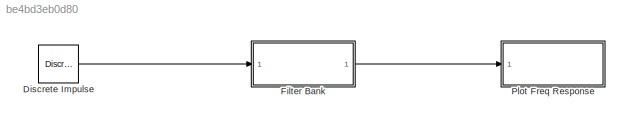
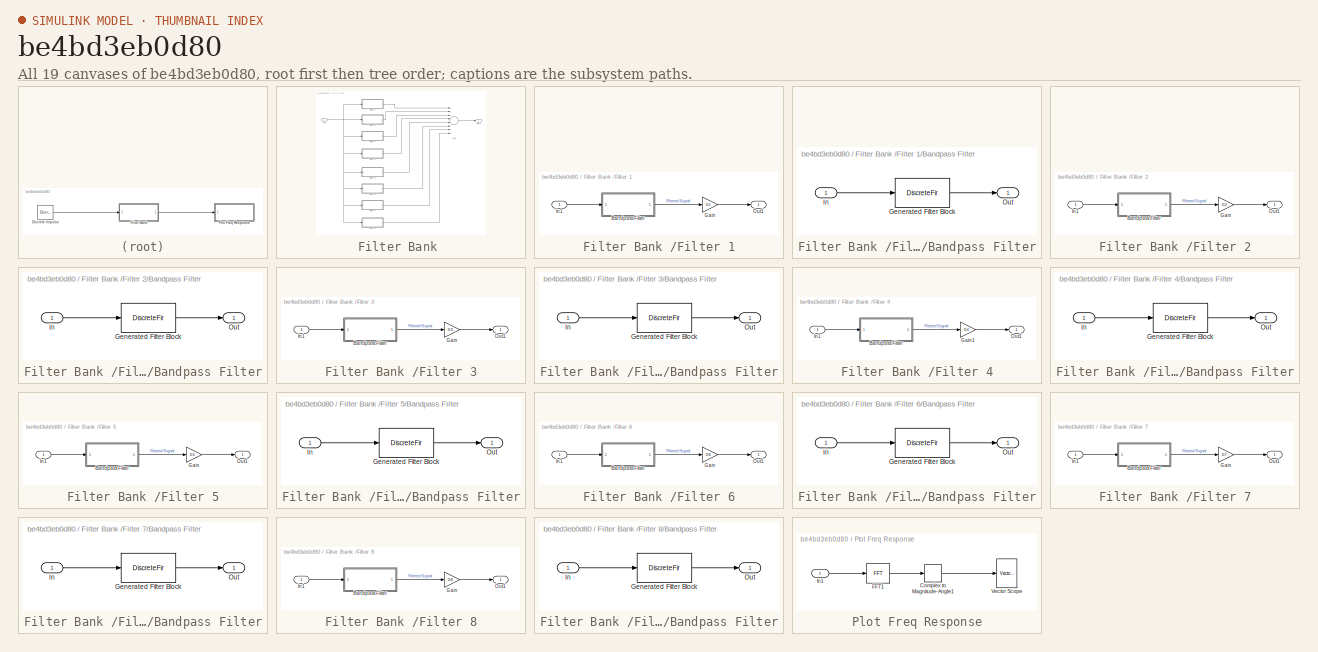
[diagram: thumbnail index - all 19 canvases of the model, root first then tree order]
MODEL slx_be4bd3eb0d80
KIND model
CONFIG AbsTol = auto
CONFIG EnableMultiTasking = off
CONFIG FixedStep = auto
CONFIG MaxStep = auto
CONFIG MinStep = auto
CONFIG RelTol = 1e-3
CONFIG SampleTimeConstraint = Unconstrained
CONFIG Solver = VariableStepAuto
CONFIG SolverName = VariableStepAuto
CONFIG StartTime = 0.0
CONFIG StopTime = 0.001
BLOCK [Reference] Discrete Impulse  REF=dspsrcs4/Discrete 
Impulse
  Ports = [0, 1]
  SourceBlock = dspsrcs4/Discrete \nImpulse
  SourceProductBaseCode = DS
  SourceProductName = DSP System Toolbox
  SourceType = Discrete Impulse
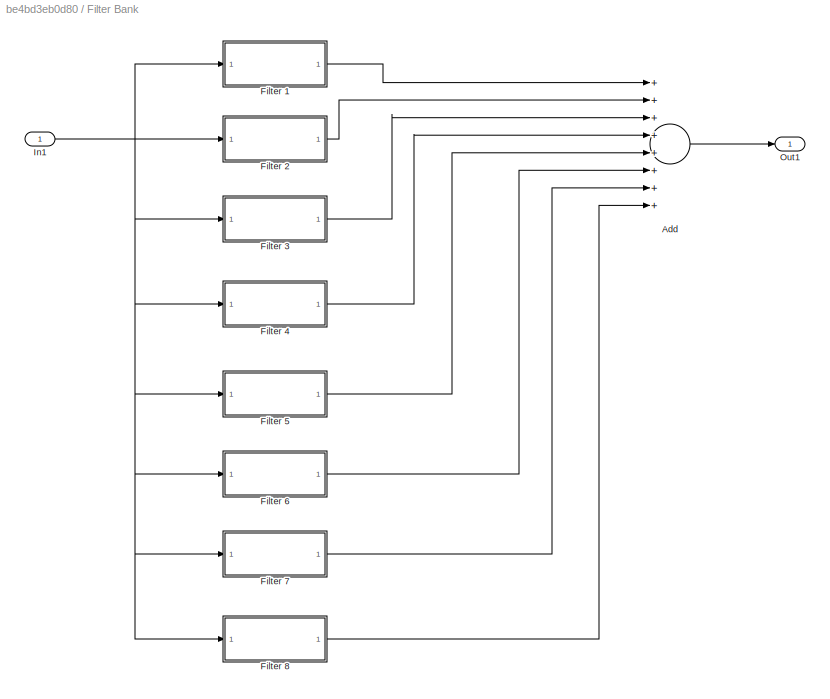
BLOCK [SubSystem] Filter Bank 
  Ports = [1, 1]
  RequestExecContextInheritance = off
BLOCK [Sum] Filter Bank /Add
  InputSameDT = off
  Inputs = ++++++++
  OutDataTypeStr = Inherit: Inherit via internal rule
  Ports = [8, 1]
  SaturateOnIntegerOverflow = off
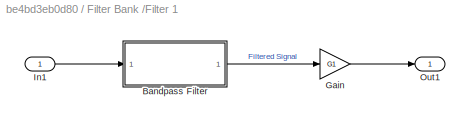
BLOCK [SubSystem] Filter Bank /Filter 1
  Ports = [1, 1]
  RequestExecContextInheritance = off
BLOCK [SubSystem] Filter Bank /Filter 1/Bandpass Filter
  CopyFcn = fdesignblkfcn(gcbh, {'CopyFcn'});
  DialogController = fdesignblkfcn
  InitFcn = fdesignblkfcn(gcbh, {'InitFcn'});
  Ports = [1, 1]
  RequestExecContextInheritance = off
  UserDataPersistent = on
BLOCK [DiscreteFir] Filter Bank /Filter 1/Bandpass Filter/Generated Filter Block
  Coefficients = [-0.257543020622626739 0.0289815190812138038 0.0271462514242718674 0.0252930204966906706 0.0233842990686340332 0.0214834889673352902 0.0195519119528949729 0.0176552863602651711 0.0157517592726700885 0.013906906244850737 0.0120765447228151409 0.0103277017026769564 0.00861245925854588548 0.00699653501298343715 0.00542957610918218606 0.00397974000407086588 0.00258688448502846944 0.0013270996224227752...<+14733ch>
  InputPortMap = u0
  InputProcessing = Columns as channels (frame based)
  OutputPortMap = o0
  Ports = [1, 1]
  Tag = BlockMethodSubSystem
BLOCK [Inport] Filter Bank /Filter 1/Bandpass Filter/In
  IconDisplay = Port number
BLOCK [Outport] Filter Bank /Filter 1/Bandpass Filter/Out
  IconDisplay = Port number
BLOCK [Gain] Filter Bank /Filter 1/Gain
  Gain = G1
  OutDataTypeStr = Inherit: Inherit via internal rule
  ParamDataTypeStr = Inherit: Inherit via internal rule
  SaturateOnIntegerOverflow = off
BLOCK [Inport] Filter Bank /Filter 1/In1
  IconDisplay = Port number
BLOCK [Outport] Filter Bank /Filter 1/Out1
  IconDisplay = Port number
BLOCK [SubSystem] Filter Bank /Filter 2
  Ports = [1, 1]
  RequestExecContextInheritance = off
BLOCK [SubSystem] Filter Bank /Filter 2/Bandpass Filter
  CopyFcn = fdesignblkfcn(gcbh, {'CopyFcn'});
  DialogController = fdesignblkfcn
  InitFcn = fdesignblkfcn(gcbh, {'InitFcn'});
  Ports = [1, 1]
  RequestExecContextInheritance = off
  UserDataPersistent = on
BLOCK [DiscreteFir] Filter Bank /Filter 2/Bandpass Filter/Generated Filter Block
  Coefficients = [-0.0660330639432535199 0.0141699831997331299 0.0123701077816715521 0.0105781049462930349 0.00878581863246792605 0.00705493856557752597 0.00537142862782863384 0.00379656427701478838 0.00230810125286075307 0.000965125479643225148 -0.000261112456825821071 -0.00130535622906845228 -0.00221286951343672988 -0.00290619347245857362 -0.00345175502430468406 -0.00375049954902033356 -0.0039245756086629946 -0....<+4217ch>
  InputPortMap = u0
  InputProcessing = Columns as channels (frame based)
  OutputPortMap = o0
  Ports = [1, 1]
  Tag = BlockMethodSubSystem
BLOCK [Inport] Filter Bank /Filter 2/Bandpass Filter/In
  IconDisplay = Port number
BLOCK [Outport] Filter Bank /Filter 2/Bandpass Filter/Out
  IconDisplay = Port number
BLOCK [Gain] Filter Bank /Filter 2/Gain
  Gain = G2
  OutDataTypeStr = Inherit: Inherit via internal rule
  ParamDataTypeStr = Inherit: Inherit via internal rule
  SaturateOnIntegerOverflow = off
BLOCK [Inport] Filter Bank /Filter 2/In1
  IconDisplay = Port number
BLOCK [Outport] Filter Bank /Filter 2/Out1
  IconDisplay = Port number
BLOCK [SubSystem] Filter Bank /Filter 3
  Ports = [1, 1]
  RequestExecContextInheritance = off
BLOCK [SubSystem] Filter Bank /Filter 3/Bandpass Filter
  CopyFcn = fdesignblkfcn(gcbh, {'CopyFcn'});
  DialogController = fdesignblkfcn
  InitFcn = fdesignblkfcn(gcbh, {'InitFcn'});
  Ports = [1, 1]
  RequestExecContextInheritance = off
  UserDataPersistent = on
BLOCK [DiscreteFir] Filter Bank /Filter 3/Bandpass Filter/Generated Filter Block
  Coefficients = [-0.022676209556659558 0.00831537627105391475 0.00625444933365220876 0.00424714302397517784 0.00237743510760208068 0.000738511637775933483 -0.00062078981031381264 -0.00163736745853693827 -0.0022926525967557794 -0.00255245315513001961 -0.00243287397496265781 -0.00193460665419815242 -0.00111680530545090265 -1.9491616540960599e-05 0.0012507856235949473 0.00262136659937836289 0.00394712406793925469 0....<+4919ch>
  InputPortMap = u0
  InputProcessing = Columns as channels (frame based)
  OutputPortMap = o0
  Ports = [1, 1]
  Tag = BlockMethodSubSystem
BLOCK [Inport] Filter Bank /Filter 3/Bandpass Filter/In
  IconDisplay = Port number
BLOCK [Outport] Filter Bank /Filter 3/Bandpass Filter/Out
  IconDisplay = Port number
BLOCK [Gain] Filter Bank /Filter 3/Gain
  Gain = G3
  OutDataTypeStr = Inherit: Inherit via internal rule
  ParamDataTypeStr = Inherit: Inherit via internal rule
  SaturateOnIntegerOverflow = off
BLOCK [Inport] Filter Bank /Filter 3/In1
  IconDisplay = Port number
BLOCK [Outport] Filter Bank /Filter 3/Out1
  IconDisplay = Port number
BLOCK [SubSystem] Filter Bank /Filter 4
  Ports = [1, 1]
  RequestExecContextInheritance = off
BLOCK [SubSystem] Filter Bank /Filter 4/Bandpass Filter
  CopyFcn = fdesignblkfcn(gcbh, {'CopyFcn'});
  DialogController = fdesignblkfcn
  InitFcn = fdesignblkfcn(gcbh, {'InitFcn'});
  Ports = [1, 1]
  RequestExecContextInheritance = off
  UserDataPersistent = on
BLOCK [DiscreteFir] Filter Bank /Filter 4/Bandpass Filter/Generated Filter Block
  Coefficients = [0.0188867810917569372 -0.007614315740862008 -0.00719307720691812324 -0.00714705712133415026 -0.00710081565682888459 -0.00676586236551331589 -0.00595435542344413277 -0.00462737657370371116 -0.00287412263670826836 -0.00090626332740616699 0.00100720475167280824 0.00257855700165236443 0.00358085391980136935 0.00387884711161009437 0.00347511605932363399 0.00248966428660695425 0.0011531879878257129 -0....<+4607ch>
  InputPortMap = u0
  InputProcessing = Columns as channels (frame based)
  OutputPortMap = o0
  Ports = [1, 1]
  Tag = BlockMethodSubSystem
BLOCK [Inport] Filter Bank /Filter 4/Bandpass Filter/In
  IconDisplay = Port number
BLOCK [Outport] Filter Bank /Filter 4/Bandpass Filter/Out
  IconDisplay = Port number
BLOCK [Gain] Filter Bank /Filter 4/Gain1
  Gain = G4
  OutDataTypeStr = Inherit: Inherit via internal rule
  ParamDataTypeStr = Inherit: Inherit via internal rule
  SaturateOnIntegerOverflow = off
BLOCK [Inport] Filter Bank /Filter 4/In1
  IconDisplay = Port number
BLOCK [Outport] Filter Bank /Filter 4/Out1
  IconDisplay = Port number
BLOCK [SubSystem] Filter Bank /Filter 5
  Ports = [1, 1]
  RequestExecContextInheritance = off
BLOCK [SubSystem] Filter Bank /Filter 5/Bandpass Filter
  CopyFcn = fdesignblkfcn(gcbh, {'CopyFcn'});
  DialogController = fdesignblkfcn
  InitFcn = fdesignblkfcn(gcbh, {'InitFcn'});
  Ports = [1, 1]
  RequestExecContextInheritance = off
  UserDataPersistent = on
BLOCK [DiscreteFir] Filter Bank /Filter 5/Bandpass Filter/Generated Filter Block
  Coefficients = [0.0241249509042130404 -0.00381759548935193009 -0.00335043117269948759 -0.00280283317956183655 -0.00222658241030008509 -0.00171780387248413914 -0.00143140992726093624 -0.00149976793369279923 -0.00198226765440287327 -0.0027724070626023679 -0.00361005011570353276 -0.00411568933374265988 -0.0039477817296882569 -0.00292641547264400805 -0.00117562333445679103 0.000889708694651456487 0.00262661884998401...<+4699ch>
  InputPortMap = u0
  InputProcessing = Columns as channels (frame based)
  OutputPortMap = o0
  Ports = [1, 1]
  Tag = BlockMethodSubSystem
BLOCK [Inport] Filter Bank /Filter 5/Bandpass Filter/In
  IconDisplay = Port number
BLOCK [Outport] Filter Bank /Filter 5/Bandpass Filter/Out
  IconDisplay = Port number
BLOCK [Gain] Filter Bank /Filter 5/Gain
  Gain = G5
  OutDataTypeStr = Inherit: Inherit via internal rule
  ParamDataTypeStr = Inherit: Inherit via internal rule
  SaturateOnIntegerOverflow = off
BLOCK [Inport] Filter Bank /Filter 5/In1
  IconDisplay = Port number
BLOCK [Outport] Filter Bank /Filter 5/Out1
  IconDisplay = Port number
BLOCK [SubSystem] Filter Bank /Filter 6
  Ports = [1, 1]
  RequestExecContextInheritance = off
BLOCK [SubSystem] Filter Bank /Filter 6/Bandpass Filter
  CopyFcn = fdesignblkfcn(gcbh, {'CopyFcn'});
  DialogController = fdesignblkfcn
  InitFcn = fdesignblkfcn(gcbh, {'InitFcn'});
  Ports = [1, 1]
  RequestExecContextInheritance = off
  UserDataPersistent = on
BLOCK [DiscreteFir] Filter Bank /Filter 6/Bandpass Filter/Generated Filter Block
  Coefficients = [-0.0190297709531986221 0.016992342518454228 0.00819042507426264235 0.00319545189032296312 0.00197915216031543939 0.0034863260088258026 0.00584958729985914083 0.00709252448362956978 0.00592296809379949662 0.00239683318209149218 -0.00207166410266780912 -0.00532207260656518757 -0.00563574573381623103 -0.00270421433350533091 0.00200275684589019953 0.00597658029457942552 0.00696961685628643551 0.00434...<+4525ch>
  InputPortMap = u0
  InputProcessing = Columns as channels (frame based)
  OutputPortMap = o0
  Ports = [1, 1]
  Tag = BlockMethodSubSystem
BLOCK [Inport] Filter Bank /Filter 6/Bandpass Filter/In
  IconDisplay = Port number
BLOCK [Outport] Filter Bank /Filter 6/Bandpass Filter/Out
  IconDisplay = Port number
BLOCK [Gain] Filter Bank /Filter 6/Gain
  Gain = G6
  OutDataTypeStr = Inherit: Inherit via internal rule
  ParamDataTypeStr = Inherit: Inherit via internal rule
  SaturateOnIntegerOverflow = off
BLOCK [Inport] Filter Bank /Filter 6/In1
  IconDisplay = Port number
BLOCK [Outport] Filter Bank /Filter 6/Out1
  IconDisplay = Port number
BLOCK [SubSystem] Filter Bank /Filter 7
  Ports = [1, 1]
  RequestExecContextInheritance = off
BLOCK [SubSystem] Filter Bank /Filter 7/Bandpass Filter
  CopyFcn = fdesignblkfcn(gcbh, {'CopyFcn'});
  DialogController = fdesignblkfcn
  InitFcn = fdesignblkfcn(gcbh, {'InitFcn'});
  Ports = [1, 1]
  RequestExecContextInheritance = off
  UserDataPersistent = on
BLOCK [DiscreteFir] Filter Bank /Filter 7/Bandpass Filter/Generated Filter Block
  Coefficients = [0.0266142024088652403 -0.00820482743346953244 -0.00947872073793343956 -0.00763560710877938392 -0.0055024523815982232 -0.00648250994958423504 -0.00685616769057125278 -0.00120519806909358262 0.00613469224541364141 0.00454071505467681935 -0.00646964037131643466 -0.0133871590347172179 -0.00679868253572561351 0.00476555307398213168 0.00702719213234332882 0.000490430538706870811 -0.0025578537074291488 ...<+2363ch>
  InputPortMap = u0
  InputProcessing = Columns as channels (frame based)
  OutputPortMap = o0
  Ports = [1, 1]
  Tag = BlockMethodSubSystem
BLOCK [Inport] Filter Bank /Filter 7/Bandpass Filter/In
  IconDisplay = Port number
BLOCK [Outport] Filter Bank /Filter 7/Bandpass Filter/Out
  IconDisplay = Port number
BLOCK [Gain] Filter Bank /Filter 7/Gain
  Gain = G7
  OutDataTypeStr = Inherit: Inherit via internal rule
  ParamDataTypeStr = Inherit: Inherit via internal rule
  SaturateOnIntegerOverflow = off
BLOCK [Inport] Filter Bank /Filter 7/In1
  IconDisplay = Port number
BLOCK [Outport] Filter Bank /Filter 7/Out1
  IconDisplay = Port number
BLOCK [SubSystem] Filter Bank /Filter 8
  Ports = [1, 1]
  RequestExecContextInheritance = off
BLOCK [SubSystem] Filter Bank /Filter 8/Bandpass Filter
  CopyFcn = fdesignblkfcn(gcbh, {'CopyFcn'});
  DialogController = fdesignblkfcn
  InitFcn = fdesignblkfcn(gcbh, {'InitFcn'});
  Ports = [1, 1]
  RequestExecContextInheritance = off
  UserDataPersistent = on
BLOCK [DiscreteFir] Filter Bank /Filter 8/Bandpass Filter/Generated Filter Block
  Coefficients = [0.0324552545858048172 -0.00568087940002814235 -0.0063973533475363345 0.000304465455982359801 0.00134749908134122742 0.0257299910948684402 -0.0125163461757416394 -0.0031259394204505124 -0.0110598839090651022 0.00347099209593304363 0.0210074712774086965 -0.0224850205458018114 -0.00295058924149638885 -0.00669899404718490854 0.0181118442603281984 0.0324520102114007891 -0.0412888463203146538 0.0003727...<+869ch>
  InputPortMap = u0
  InputProcessing = Columns as channels (frame based)
  OutputPortMap = o0
  Ports = [1, 1]
  Tag = BlockMethodSubSystem
BLOCK [Inport] Filter Bank /Filter 8/Bandpass Filter/In
  IconDisplay = Port number
BLOCK [Outport] Filter Bank /Filter 8/Bandpass Filter/Out
  IconDisplay = Port number
BLOCK [Gain] Filter Bank /Filter 8/Gain
  Gain = G8
  OutDataTypeStr = Inherit: Inherit via internal rule
  ParamDataTypeStr = Inherit: Inherit via internal rule
  SaturateOnIntegerOverflow = off
BLOCK [Inport] Filter Bank /Filter 8/In1
  IconDisplay = Port number
BLOCK [Outport] Filter Bank /Filter 8/Out1
  IconDisplay = Port number
BLOCK [Inport] Filter Bank /In1
  IconDisplay = Port number
BLOCK [Outport] Filter Bank /Out1
  IconDisplay = Port number
BLOCK [SubSystem] Plot Freq Response
  Ports = [1]
  RequestExecContextInheritance = off
BLOCK [ComplexToMagnitudeAngle] Plot Freq Response/Complex to Magnitude-Angle1
  Output = Magnitude
  Ports = [1, 1]
BLOCK [Reference] Plot Freq Response/FFT1  REF=dspxfrm3/FFT
  Ports = [1, 1]
  SourceBlock = dspxfrm3/FFT
  SourceProductBaseCode = DS
  SourceProductName = DSP System Toolbox
  SourceType = FFT
BLOCK [Inport] Plot Freq Response/In1
  IconDisplay = Port number
BLOCK [Reference] Plot Freq Response/Vector Scope  REF=dspobslib/Vector
Scope
  Ports = [1]
  SourceBlock = dspobslib/Vector\nScope
  SourceProductBaseCode = DS
  SourceProductName = DSP System Toolbox
  SourceType = Vector Scope
LINE Discrete Impulse:1 -> Filter Bank :1
LINE Filter Bank /Add:1 -> Filter Bank /Out1:1
LINE Filter Bank /Filter 1/Bandpass Filter:1 -> Filter Bank /Filter 1/Gain:1
LINE Filter Bank /Filter 1/Gain:1 -> Filter Bank /Filter 1/Out1:1
LINE Filter Bank /Filter 1/In1:1 -> Filter Bank /Filter 1/Bandpass Filter:1
LINE Filter Bank /Filter 1:1 -> Filter Bank /Add:1
LINE Filter Bank /Filter 2/Bandpass Filter:1 -> Filter Bank /Filter 2/Gain:1
LINE Filter Bank /Filter 2/Gain:1 -> Filter Bank /Filter 2/Out1:1
LINE Filter Bank /Filter 2/In1:1 -> Filter Bank /Filter 2/Bandpass Filter:1
LINE Filter Bank /Filter 2:1 -> Filter Bank /Add:2
LINE Filter Bank /Filter 3/Bandpass Filter:1 -> Filter Bank /Filter 3/Gain:1
LINE Filter Bank /Filter 3/Gain:1 -> Filter Bank /Filter 3/Out1:1
LINE Filter Bank /Filter 3/In1:1 -> Filter Bank /Filter 3/Bandpass Filter:1
LINE Filter Bank /Filter 3:1 -> Filter Bank /Add:3
LINE Filter Bank /Filter 4/Bandpass Filter:1 -> Filter Bank /Filter 4/Gain1:1
LINE Filter Bank /Filter 4/Gain1:1 -> Filter Bank /Filter 4/Out1:1
LINE Filter Bank /Filter 4/In1:1 -> Filter Bank /Filter 4/Bandpass Filter:1
LINE Filter Bank /Filter 4:1 -> Filter Bank /Add:4
LINE Filter Bank /Filter 5/Bandpass Filter:1 -> Filter Bank /Filter 5/Gain:1
LINE Filter Bank /Filter 5/Gain:1 -> Filter Bank /Filter 5/Out1:1
LINE Filter Bank /Filter 5/In1:1 -> Filter Bank /Filter 5/Bandpass Filter:1
LINE Filter Bank /Filter 5:1 -> Filter Bank /Add:5
LINE Filter Bank /Filter 6/Bandpass Filter:1 -> Filter Bank /Filter 6/Gain:1
LINE Filter Bank /Filter 6/Gain:1 -> Filter Bank /Filter 6/Out1:1
LINE Filter Bank /Filter 6/In1:1 -> Filter Bank /Filter 6/Bandpass Filter:1
LINE Filter Bank /Filter 6:1 -> Filter Bank /Add:6
LINE Filter Bank /Filter 7/Bandpass Filter:1 -> Filter Bank /Filter 7/Gain:1
LINE Filter Bank /Filter 7/Gain:1 -> Filter Bank /Filter 7/Out1:1
LINE Filter Bank /Filter 7/In1:1 -> Filter Bank /Filter 7/Bandpass Filter:1
LINE Filter Bank /Filter 7:1 -> Filter Bank /Add:7
LINE Filter Bank /Filter 8/Bandpass Filter:1 -> Filter Bank /Filter 8/Gain:1
LINE Filter Bank /Filter 8/Gain:1 -> Filter Bank /Filter 8/Out1:1
LINE Filter Bank /Filter 8/In1:1 -> Filter Bank /Filter 8/Bandpass Filter:1
LINE Filter Bank /Filter 8:1 -> Filter Bank /Add:8
NET Filter Bank /In1:1 -> Filter Bank /Filter 1:1, Filter Bank /Filter 2:1, Filter Bank /Filter 3:1, Filter Bank /Filter 4:1, Filter Bank /Filter 5:1, Filter Bank /Filter 6:1, Filter Bank /Filter 7:1, Filter Bank /Filter 8:1
LINE Filter Bank :1 -> Plot Freq Response:1
LINE Plot Freq Response/Complex to Magnitude-Angle1:1 -> Plot Freq Response/Vector Scope:1
LINE Plot Freq Response/FFT1:1 -> Plot Freq Response/Complex to Magnitude-Angle1:1
LINE Plot Freq Response/In1:1 -> Plot Freq Response/FFT1:1
note: NET lines group one-source signal fan-out (src -> all destinations, sorted); 1:1 wires keep LINE
